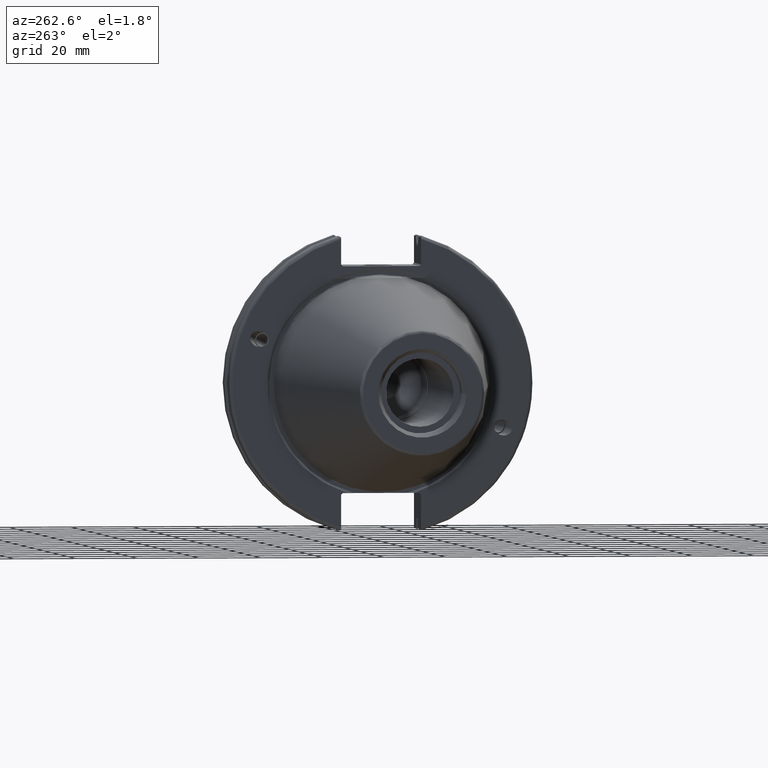
[diagram: clean part render]
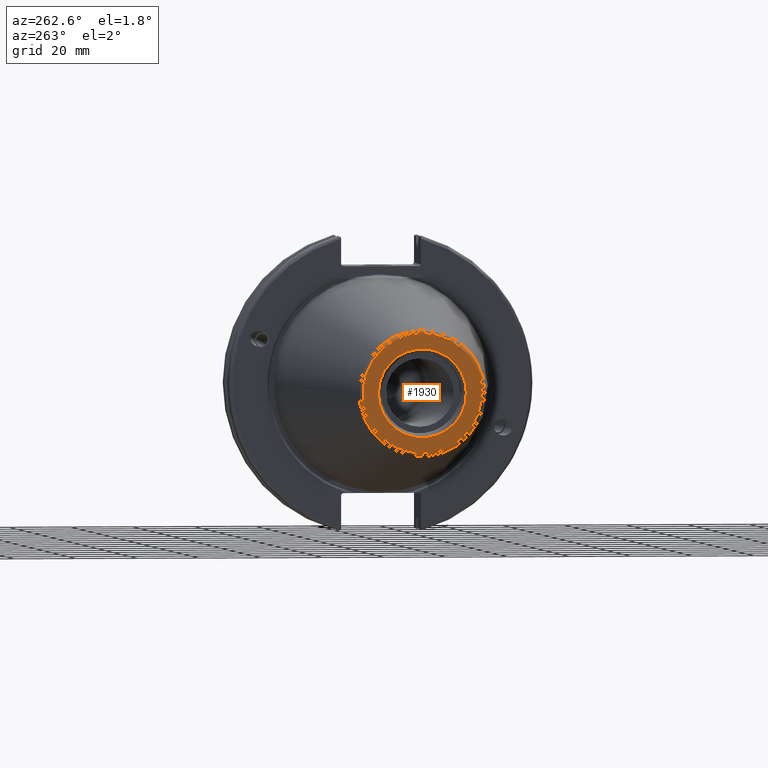
[diagram: same view with one face highlighted and labeled with its STEP entity id]
A machine part, auxiliary view. The second image highlights one B-rep face of the part: STEP entity #1930.
In plain terms, the highlighted planar face has unit normal (-1, 0, 0).
Its self-contained STEP definition (entity closure, byte-faithful):
#89=FACE_BOUND('',#587,.T.);
#113=PLANE('',#2175);
#464=FACE_OUTER_BOUND('',#586,.T.);
#586=EDGE_LOOP('',(#1682));
#587=EDGE_LOOP('',(#1683));
#735=CIRCLE('',#2174,19.2435889303637);
#736=CIRCLE('',#2176,14.2875);
#933=VERTEX_POINT('',#3789);
#934=VERTEX_POINT('',#3793);
#1201=EDGE_CURVE('',#933,#933,#735,.T.);
#1202=EDGE_CURVE('',#934,#934,#736,.T.);
#1682=ORIENTED_EDGE('',*,*,#1201,.F.);
#1683=ORIENTED_EDGE('',*,*,#1202,.T.);
#1930=ADVANCED_FACE('',(#464,#89),#113,.T.);
#2174=AXIS2_PLACEMENT_3D('',#3791,#2686,#2687);
#2175=AXIS2_PLACEMENT_3D('',#3792,#2688,#2689);
#2176=AXIS2_PLACEMENT_3D('',#3794,#2690,#2691);
#2686=DIRECTION('center_axis',(1.,0.,0.));
#2687=DIRECTION('ref_axis',(0.,-1.,1.83697019872103E-16));
#2688=DIRECTION('center_axis',(-1.,0.,0.));
#2689=DIRECTION('ref_axis',(0.,0.,1.));
#2690=DIRECTION('center_axis',(1.,0.,0.));
#2691=DIRECTION('ref_axis',(0.,0.,-1.));
#3789=CARTESIAN_POINT('',(-101.6,-2.35665995876774E-15,19.2435889303637));
#3791=CARTESIAN_POINT('Origin',(-101.6,0.,0.));
#3792=CARTESIAN_POINT('Origin',(-101.6,20.1083333333333,0.));
#3793=CARTESIAN_POINT('',(-101.6,-14.2875,-1.74971411428178E-15));
#3794=CARTESIAN_POINT('Origin',(-101.6,0.,0.));